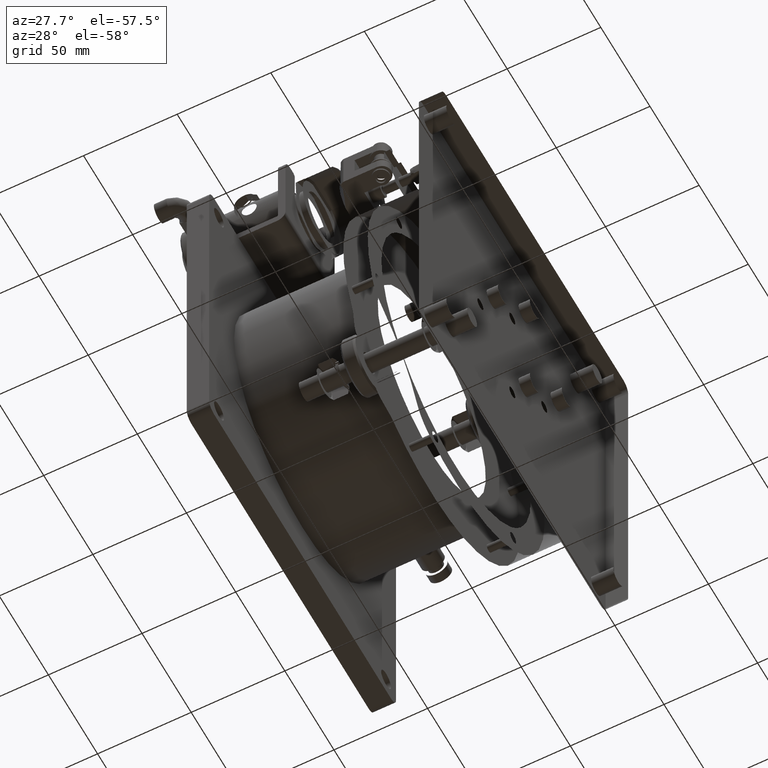
[diagram: clean part render]
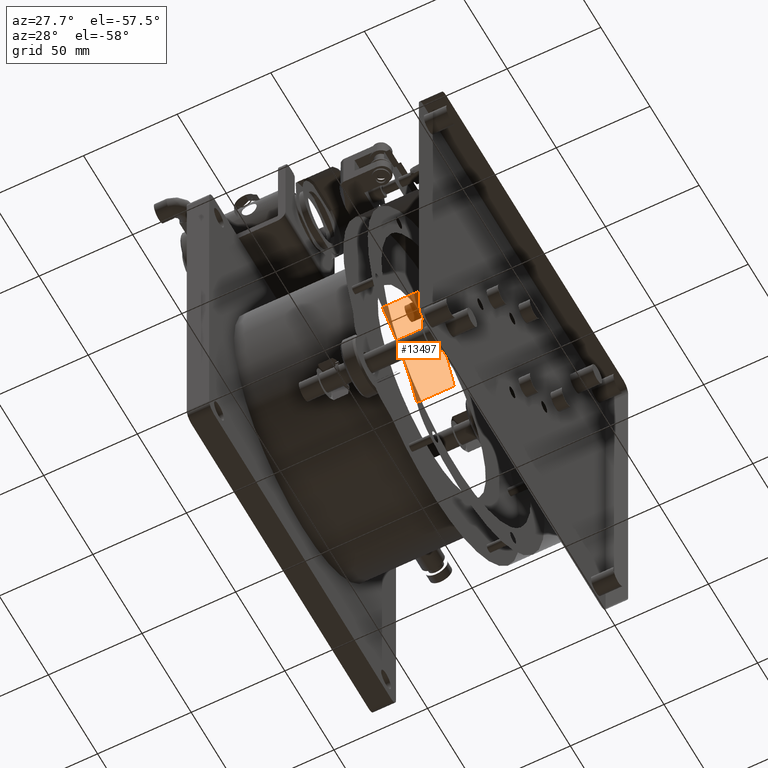
[diagram: same view with one face highlighted and labeled with its STEP entity id]
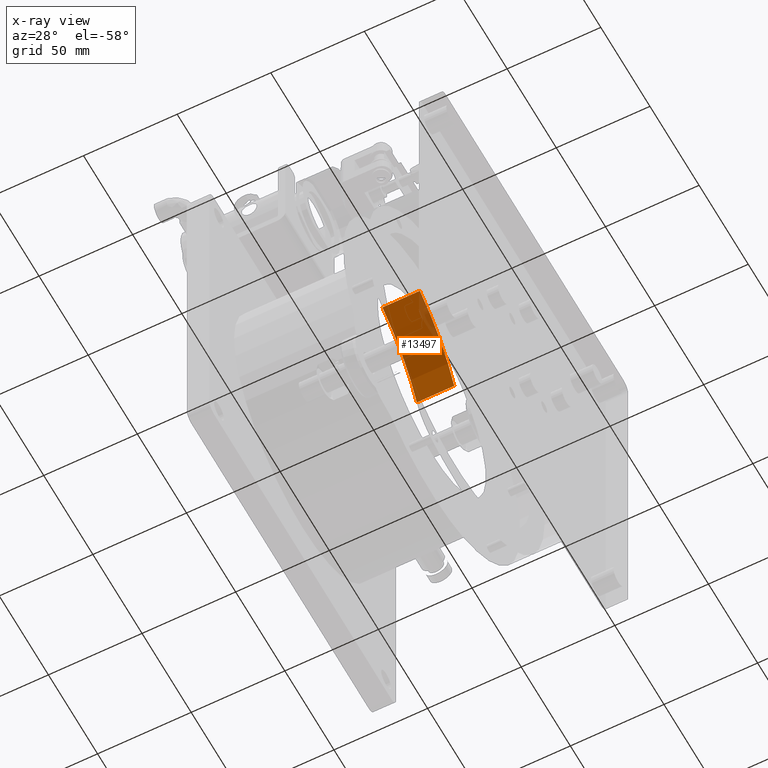
[diagram: x-ray of the same camera — body ghosted, the highlighted face saturated]
A machine part, auxiliary view. The second image highlights one B-rep face of the part: STEP entity #13497.
The next image is the same camera in x-ray: the body ghosted, the highlighted face saturated — about 8% of this face is hidden behind the body in this view.
In plain terms, the highlighted cylindrical surface (partial cylindrical patch) has radius 73 mm, axis along (1, -0, -0).
Its self-contained STEP definition (entity closure, byte-faithful):
#488 = CARTESIAN_POINT ( 'NONE',  ( 517.7315486138146525, -40.00846966124098003, 535.0403047027019738 ) ) ;
#878 = DIRECTION ( 'NONE',  ( 1.000000000000000000, -1.238090656415592001E-21, -3.473191859917468115E-17 ) ) ;
#2316 = ORIENTED_EDGE ( 'NONE', *, *, #18093, .T. ) ;
#2519 = DIRECTION ( 'NONE',  ( -1.000000000000000000, 1.238090656415592001E-21, 3.473191859917468115E-17 ) ) ;
#3340 = CYLINDRICAL_SURFACE ( 'NONE', #10246, 72.99999999999995737 ) ;
#4087 = VERTEX_POINT ( 'NONE', #7748 ) ;
#4256 = EDGE_CURVE ( 'NONE', #4087, #6606, #14338, .T. ) ;
#4295 = ORIENTED_EDGE ( 'NONE', *, *, #4256, .F. ) ;
#5110 = CARTESIAN_POINT ( 'NONE',  ( 517.7315486138146525, -106.0660171779819194, 503.9694113123678108 ) ) ;
#6084 = CARTESIAN_POINT ( 'NONE',  ( 517.7315486138146525, -74.99512378764823950, 570.0269588291090486 ) ) ;
#6606 = VERTEX_POINT ( 'NONE', #7261 ) ;
#6676 = DIRECTION ( 'NONE',  ( 1.000000000000000000, -1.238090656415592001E-21, -3.473191859917468115E-17 ) ) ;
#7261 = CARTESIAN_POINT ( 'NONE',  ( 537.7315486138145388, -74.99512378764823950, 570.0269588291089349 ) ) ;
#7748 = CARTESIAN_POINT ( 'NONE',  ( 537.7315486138145388, -40.00846966124098003, 535.0403047027019738 ) ) ;
#7941 = ORIENTED_EDGE ( 'NONE', *, *, #17441, .T. ) ;
#8000 = EDGE_LOOP ( 'NONE', ( #7941, #4295, #10543, #2316 ) ) ;
#8409 = CARTESIAN_POINT ( 'NONE',  ( 517.7315486138146525, -74.99512378764823950, 570.0269588291089349 ) ) ;
#9529 = DIRECTION ( 'NONE',  ( 1.000000000000000000, -1.238090656415592001E-21, -3.473191859917468115E-17 ) ) ;
#10246 = AXIS2_PLACEMENT_3D ( 'NONE', #5110, #6676, #13442 ) ;
#10364 = VERTEX_POINT ( 'NONE', #488 ) ;
#10543 = ORIENTED_EDGE ( 'NONE', *, *, #19837, .T. ) ;
#10849 = VERTEX_POINT ( 'NONE', #8409 ) ;
#11367 = VECTOR ( 'NONE', #2519, 1000.000000000000000 ) ;
#11673 = FACE_OUTER_BOUND ( 'NONE', #8000, .T. ) ;
#13073 = CARTESIAN_POINT ( 'NONE',  ( 537.7315486138146525, -106.0660171779819194, 503.9694113123678108 ) ) ;
#13442 = DIRECTION ( 'NONE',  ( 0.000000000000000000, 0.000000000000000000, -1.000000000000000000 ) ) ;
#13446 = CIRCLE ( 'NONE', #17002, 72.99999999999995737 ) ;
#13497 = ADVANCED_FACE ( 'NONE', ( #11673 ), #3340, .T. ) ;
#14338 = CIRCLE ( 'NONE', #14702, 72.99999999999995737 ) ;
#14702 = AXIS2_PLACEMENT_3D ( 'NONE', #13073, #878, #21381 ) ;
#16082 = DIRECTION ( 'NONE',  ( 0.000000000000000000, 0.000000000000000000, -1.000000000000000000 ) ) ;
#16307 = CARTESIAN_POINT ( 'NONE',  ( 517.7315486138146525, -106.0660171779819194, 503.9694113123678108 ) ) ;
#17002 = AXIS2_PLACEMENT_3D ( 'NONE', #16307, #19409, #16082 ) ;
#17441 = EDGE_CURVE ( 'NONE', #10849, #6606, #17744, .T. ) ;
#17744 = LINE ( 'NONE', #6084, #19814 ) ;
#18093 = EDGE_CURVE ( 'NONE', #10364, #10849, #13446, .T. ) ;
#19409 = DIRECTION ( 'NONE',  ( 1.000000000000000000, -1.238090656415592001E-21, -3.473191859917468115E-17 ) ) ;
#19597 = CARTESIAN_POINT ( 'NONE',  ( 517.7315486138146525, -40.00846966124100845, 535.0403047027019738 ) ) ;
#19814 = VECTOR ( 'NONE', #9529, 1000.000000000000000 ) ;
#19837 = EDGE_CURVE ( 'NONE', #4087, #10364, #21148, .T. ) ;
#21148 = LINE ( 'NONE', #19597, #11367 ) ;
#21381 = DIRECTION ( 'NONE',  ( 0.000000000000000000, 0.000000000000000000, -1.000000000000000000 ) ) ;